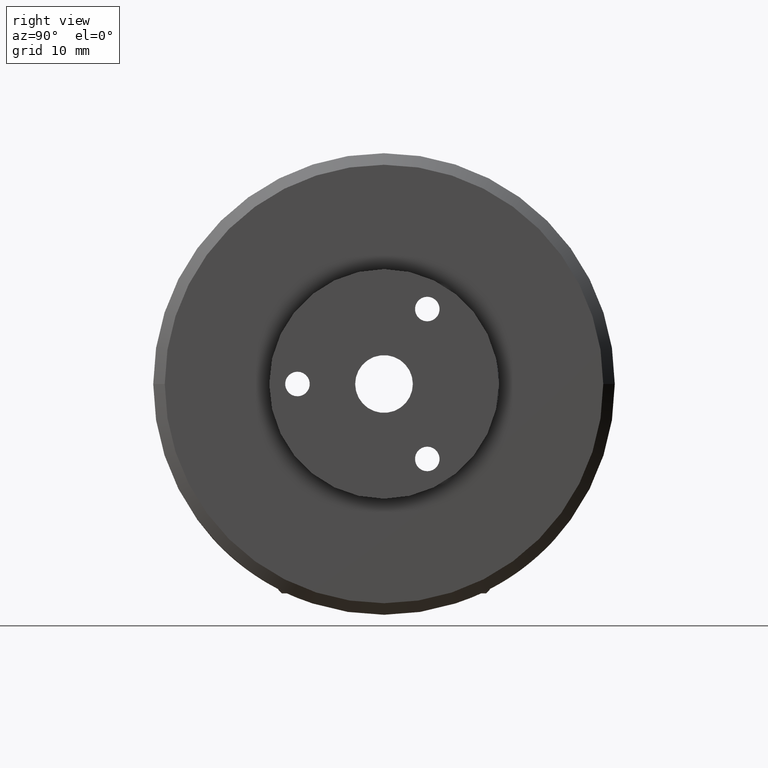
[diagram: clean part render]
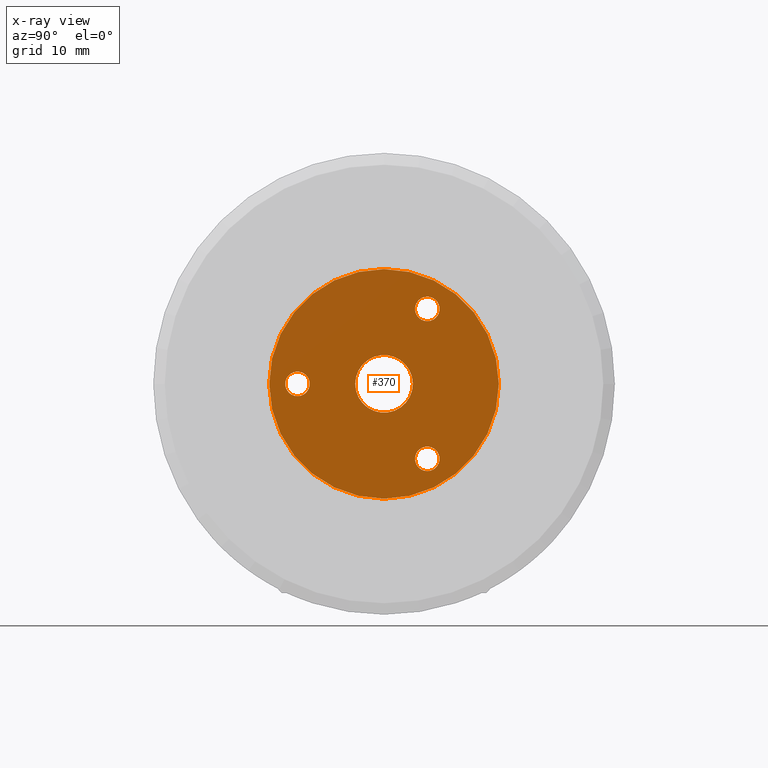
[diagram: x-ray — body ghosted, one internal face saturated and labeled with its STEP entity id]
A machine part, right view, then the same camera in x-ray: the body is ghosted and one INTERNAL B-rep face — a face not visible from any outside direction — is saturated and labeled: STEP entity #370.
In plain terms, the highlighted planar face has unit normal (1, 0, 0).
Its self-contained STEP definition (entity closure, byte-faithful):
#52 = DIRECTION ( 'NONE',  ( 0.0000000000000000000, 0.0000000000000000000, -1.000000000000000000 ) ) ;
#93 = DIRECTION ( 'NONE',  ( 1.000000000000000000, 0.0000000000000000000, 0.0000000000000000000 ) ) ;
#104 = CARTESIAN_POINT ( 'NONE',  ( -0.002500000000000000100, 1.707404996040164500E-016, 0.0000000000000000000 ) ) ;
#111 = PLANE ( 'NONE',  #148 ) ;
#148 = AXIS2_PLACEMENT_3D ( 'NONE', #104, #93, #52 ) ;
#178 = AXIS2_PLACEMENT_3D ( 'NONE', #2727, #2844, #2502 ) ;
#182 = AXIS2_PLACEMENT_3D ( 'NONE', #2751, #2508, #2501 ) ;
#186 = AXIS2_PLACEMENT_3D ( 'NONE', #2601, #2513, #2738 ) ;
#212 = AXIS2_PLACEMENT_3D ( 'NONE', #2846, #2854, #2532 ) ;
#225 = AXIS2_PLACEMENT_3D ( 'NONE', #1219, #1221, #1222 ) ;
#226 = AXIS2_PLACEMENT_3D ( 'NONE', #1226, #1227, #1228 ) ;
#228 = AXIS2_PLACEMENT_3D ( 'NONE', #1235, #1236, #1237 ) ;
#247 = AXIS2_PLACEMENT_3D ( 'NONE', #1588, #1590, #1591 ) ;
#261 = AXIS2_PLACEMENT_3D ( 'NONE', #1656, #1663, #1664 ) ;
#263 = AXIS2_PLACEMENT_3D ( 'NONE', #1662, #1670, #1671 ) ;
#370 = ADVANCED_FACE ( 'NONE', ( #3306, #3312, #3320, #3322, #3317 ), #111, .T. ) ;
#550 = EDGE_CURVE ( 'NONE', #806, #878, #3376, .T. ) ;
#559 = EDGE_CURVE ( 'NONE', #800, #836, #3388, .T. ) ;
#561 = EDGE_CURVE ( 'NONE', #836, #800, #3389, .T. ) ;
#639 = EDGE_CURVE ( 'NONE', #889, #896, #2892, .T. ) ;
#680 = EDGE_CURVE ( 'NONE', #896, #889, #2941, .T. ) ;
#682 = EDGE_CURVE ( 'NONE', #888, #803, #2944, .T. ) ;
#686 = EDGE_CURVE ( 'NONE', #2260, #824, #2951, .T. ) ;
#767 = EDGE_CURVE ( 'NONE', #878, #806, #3071, .T. ) ;
#780 = EDGE_CURVE ( 'NONE', #824, #2260, #3086, .T. ) ;
#782 = EDGE_CURVE ( 'NONE', #803, #888, #3090, .T. ) ;
#800 = VERTEX_POINT ( 'NONE', #1669 ) ;
#803 = VERTEX_POINT ( 'NONE', #1674 ) ;
#806 = VERTEX_POINT ( 'NONE', #1677 ) ;
#824 = VERTEX_POINT ( 'NONE', #1693 ) ;
#836 = VERTEX_POINT ( 'NONE', #1705 ) ;
#878 = VERTEX_POINT ( 'NONE', #1746 ) ;
#888 = VERTEX_POINT ( 'NONE', #1755 ) ;
#889 = VERTEX_POINT ( 'NONE', #1756 ) ;
#896 = VERTEX_POINT ( 'NONE', #1762 ) ;
#1219 = CARTESIAN_POINT ( 'NONE',  ( -0.002500000000000041700, 0.1875000000000000800, 0.3247595264191644500 ) ) ;
#1221 = DIRECTION ( 'NONE',  ( -1.000000000000000000, -0.0000000000000000000, -0.0000000000000000000 ) ) ;
#1222 = DIRECTION ( 'NONE',  ( 0.0000000000000000000, 0.0000000000000000000, -1.000000000000000000 ) ) ;
#1226 = CARTESIAN_POINT ( 'NONE',  ( -0.002500000000000041700, -0.3750000000000000600, -1.182924880895400800E-016 ) ) ;
#1227 = DIRECTION ( 'NONE',  ( -1.000000000000000000, -0.0000000000000000000, -0.0000000000000000000 ) ) ;
#1228 = DIRECTION ( 'NONE',  ( 0.0000000000000000000, 0.0000000000000000000, -1.000000000000000000 ) ) ;
#1235 = CARTESIAN_POINT ( 'NONE',  ( -0.002500000000000041700, 0.1875000000000000800, -0.3247595264191644500 ) ) ;
#1236 = DIRECTION ( 'NONE',  ( -1.000000000000000000, -0.0000000000000000000, -0.0000000000000000000 ) ) ;
#1237 = DIRECTION ( 'NONE',  ( 0.0000000000000000000, 0.0000000000000000000, -1.000000000000000000 ) ) ;
#1588 = CARTESIAN_POINT ( 'NONE',  ( -0.002500000000000000100, 1.707404996040164500E-016, 0.0000000000000000000 ) ) ;
#1590 = DIRECTION ( 'NONE',  ( 1.000000000000000000, 0.0000000000000000000, 0.0000000000000000000 ) ) ;
#1591 = DIRECTION ( 'NONE',  ( 0.0000000000000000000, 0.0000000000000000000, -1.000000000000000000 ) ) ;
#1656 = CARTESIAN_POINT ( 'NONE',  ( -0.002500000000000041700, 0.1875000000000000800, -0.3247595264191644500 ) ) ;
#1662 = CARTESIAN_POINT ( 'NONE',  ( -0.002500000000000041700, -0.3750000000000000600, -1.182924880895400800E-016 ) ) ;
#1663 = DIRECTION ( 'NONE',  ( -1.000000000000000000, -0.0000000000000000000, -0.0000000000000000000 ) ) ;
#1664 = DIRECTION ( 'NONE',  ( 0.0000000000000000000, 0.0000000000000000000, -1.000000000000000000 ) ) ;
#1669 = CARTESIAN_POINT ( 'NONE',  ( -0.002500000000000000100, 0.1250000000000001700, 0.0000000000000000000 ) ) ;
#1670 = DIRECTION ( 'NONE',  ( -1.000000000000000000, -0.0000000000000000000, -0.0000000000000000000 ) ) ;
#1671 = DIRECTION ( 'NONE',  ( 0.0000000000000000000, 0.0000000000000000000, -1.000000000000000000 ) ) ;
#1674 = CARTESIAN_POINT ( 'NONE',  ( -0.002500000000000041700, -0.3750000000000000600, 0.05324999999999968000 ) ) ;
#1677 = CARTESIAN_POINT ( 'NONE',  ( -0.002500000000000000100, 1.707404996040164500E-016, -0.4974999999999998900 ) ) ;
#1693 = CARTESIAN_POINT ( 'NONE',  ( -0.002500000000000041700, 0.1875000000000000800, -0.2715095264191647000 ) ) ;
#1705 = CARTESIAN_POINT ( 'NONE',  ( -0.002500000000000000100, -0.1249999999999998300, 1.530808498934191200E-017 ) ) ;
#1746 = CARTESIAN_POINT ( 'NONE',  ( -0.002500000000000000100, 2.316666778615972600E-016, 0.4974999999999998900 ) ) ;
#1755 = CARTESIAN_POINT ( 'NONE',  ( -0.002500000000000041700, -0.3750000000000000600, -0.05324999999999992200 ) ) ;
#1756 = CARTESIAN_POINT ( 'NONE',  ( -0.002500000000000041700, 0.1875000000000000800, 0.3780095264191642400 ) ) ;
#1762 = CARTESIAN_POINT ( 'NONE',  ( -0.002500000000000041700, 0.1875000000000000800, 0.2715095264191647000 ) ) ;
#1796 = CARTESIAN_POINT ( 'NONE',  ( -0.002500000000000041700, 0.1875000000000000800, -0.3780095264191642400 ) ) ;
#2260 = VERTEX_POINT ( 'NONE', #1796 ) ;
#2373 = EDGE_LOOP ( 'NONE', ( #3613, #3517 ) ) ;
#2501 = DIRECTION ( 'NONE',  ( 0.0000000000000000000, 0.0000000000000000000, -1.000000000000000000 ) ) ;
#2502 = DIRECTION ( 'NONE',  ( 0.0000000000000000000, 0.0000000000000000000, -1.000000000000000000 ) ) ;
#2508 = DIRECTION ( 'NONE',  ( 1.000000000000000000, 0.0000000000000000000, 0.0000000000000000000 ) ) ;
#2513 = DIRECTION ( 'NONE',  ( 1.000000000000000000, 0.0000000000000000000, 0.0000000000000000000 ) ) ;
#2532 = DIRECTION ( 'NONE',  ( 0.0000000000000000000, 0.0000000000000000000, -1.000000000000000000 ) ) ;
#2601 = CARTESIAN_POINT ( 'NONE',  ( -0.002500000000000000100, 1.707404996040164500E-016, 0.0000000000000000000 ) ) ;
#2727 = CARTESIAN_POINT ( 'NONE',  ( -0.002500000000000000100, 1.707404996040164500E-016, 0.0000000000000000000 ) ) ;
#2738 = DIRECTION ( 'NONE',  ( 0.0000000000000000000, 0.0000000000000000000, -1.000000000000000000 ) ) ;
#2751 = CARTESIAN_POINT ( 'NONE',  ( -0.002500000000000000100, 1.707404996040164500E-016, 0.0000000000000000000 ) ) ;
#2844 = DIRECTION ( 'NONE',  ( 1.000000000000000000, 0.0000000000000000000, 0.0000000000000000000 ) ) ;
#2846 = CARTESIAN_POINT ( 'NONE',  ( -0.002500000000000041700, 0.1875000000000000800, 0.3247595264191644500 ) ) ;
#2854 = DIRECTION ( 'NONE',  ( -1.000000000000000000, -0.0000000000000000000, -0.0000000000000000000 ) ) ;
#2892 = CIRCLE ( 'NONE', #212, 0.05324999999999977000 ) ;
#2941 = CIRCLE ( 'NONE', #225, 0.05324999999999977000 ) ;
#2944 = CIRCLE ( 'NONE', #226, 0.05324999999999979700 ) ;
#2951 = CIRCLE ( 'NONE', #228, 0.05324999999999977000 ) ;
#3071 = CIRCLE ( 'NONE', #247, 0.4974999999999998900 ) ;
#3086 = CIRCLE ( 'NONE', #261, 0.05324999999999977000 ) ;
#3090 = CIRCLE ( 'NONE', #263, 0.05324999999999979700 ) ;
#3306 = FACE_BOUND ( 'NONE', #3662, .T. ) ;
#3312 = FACE_OUTER_BOUND ( 'NONE', #3676, .T. ) ;
#3317 = FACE_BOUND ( 'NONE', #2373, .T. ) ;
#3320 = FACE_BOUND ( 'NONE', #3634, .T. ) ;
#3322 = FACE_BOUND ( 'NONE', #3665, .T. ) ;
#3376 = CIRCLE ( 'NONE', #178, 0.4974999999999998900 ) ;
#3388 = CIRCLE ( 'NONE', #186, 0.1250000000000000000 ) ;
#3389 = CIRCLE ( 'NONE', #182, 0.1250000000000000000 ) ;
#3517 = ORIENTED_EDGE ( 'NONE', *, *, #782, .T. ) ;
#3526 = ORIENTED_EDGE ( 'NONE', *, *, #780, .T. ) ;
#3546 = ORIENTED_EDGE ( 'NONE', *, *, #686, .T. ) ;
#3576 = ORIENTED_EDGE ( 'NONE', *, *, #680, .T. ) ;
#3590 = ORIENTED_EDGE ( 'NONE', *, *, #767, .T. ) ;
#3593 = ORIENTED_EDGE ( 'NONE', *, *, #561, .F. ) ;
#3604 = ORIENTED_EDGE ( 'NONE', *, *, #639, .T. ) ;
#3605 = ORIENTED_EDGE ( 'NONE', *, *, #550, .T. ) ;
#3613 = ORIENTED_EDGE ( 'NONE', *, *, #682, .T. ) ;
#3615 = ORIENTED_EDGE ( 'NONE', *, *, #559, .F. ) ;
#3634 = EDGE_LOOP ( 'NONE', ( #3615, #3593 ) ) ;
#3662 = EDGE_LOOP ( 'NONE', ( #3546, #3526 ) ) ;
#3665 = EDGE_LOOP ( 'NONE', ( #3576, #3604 ) ) ;
#3676 = EDGE_LOOP ( 'NONE', ( #3605, #3590 ) ) ;